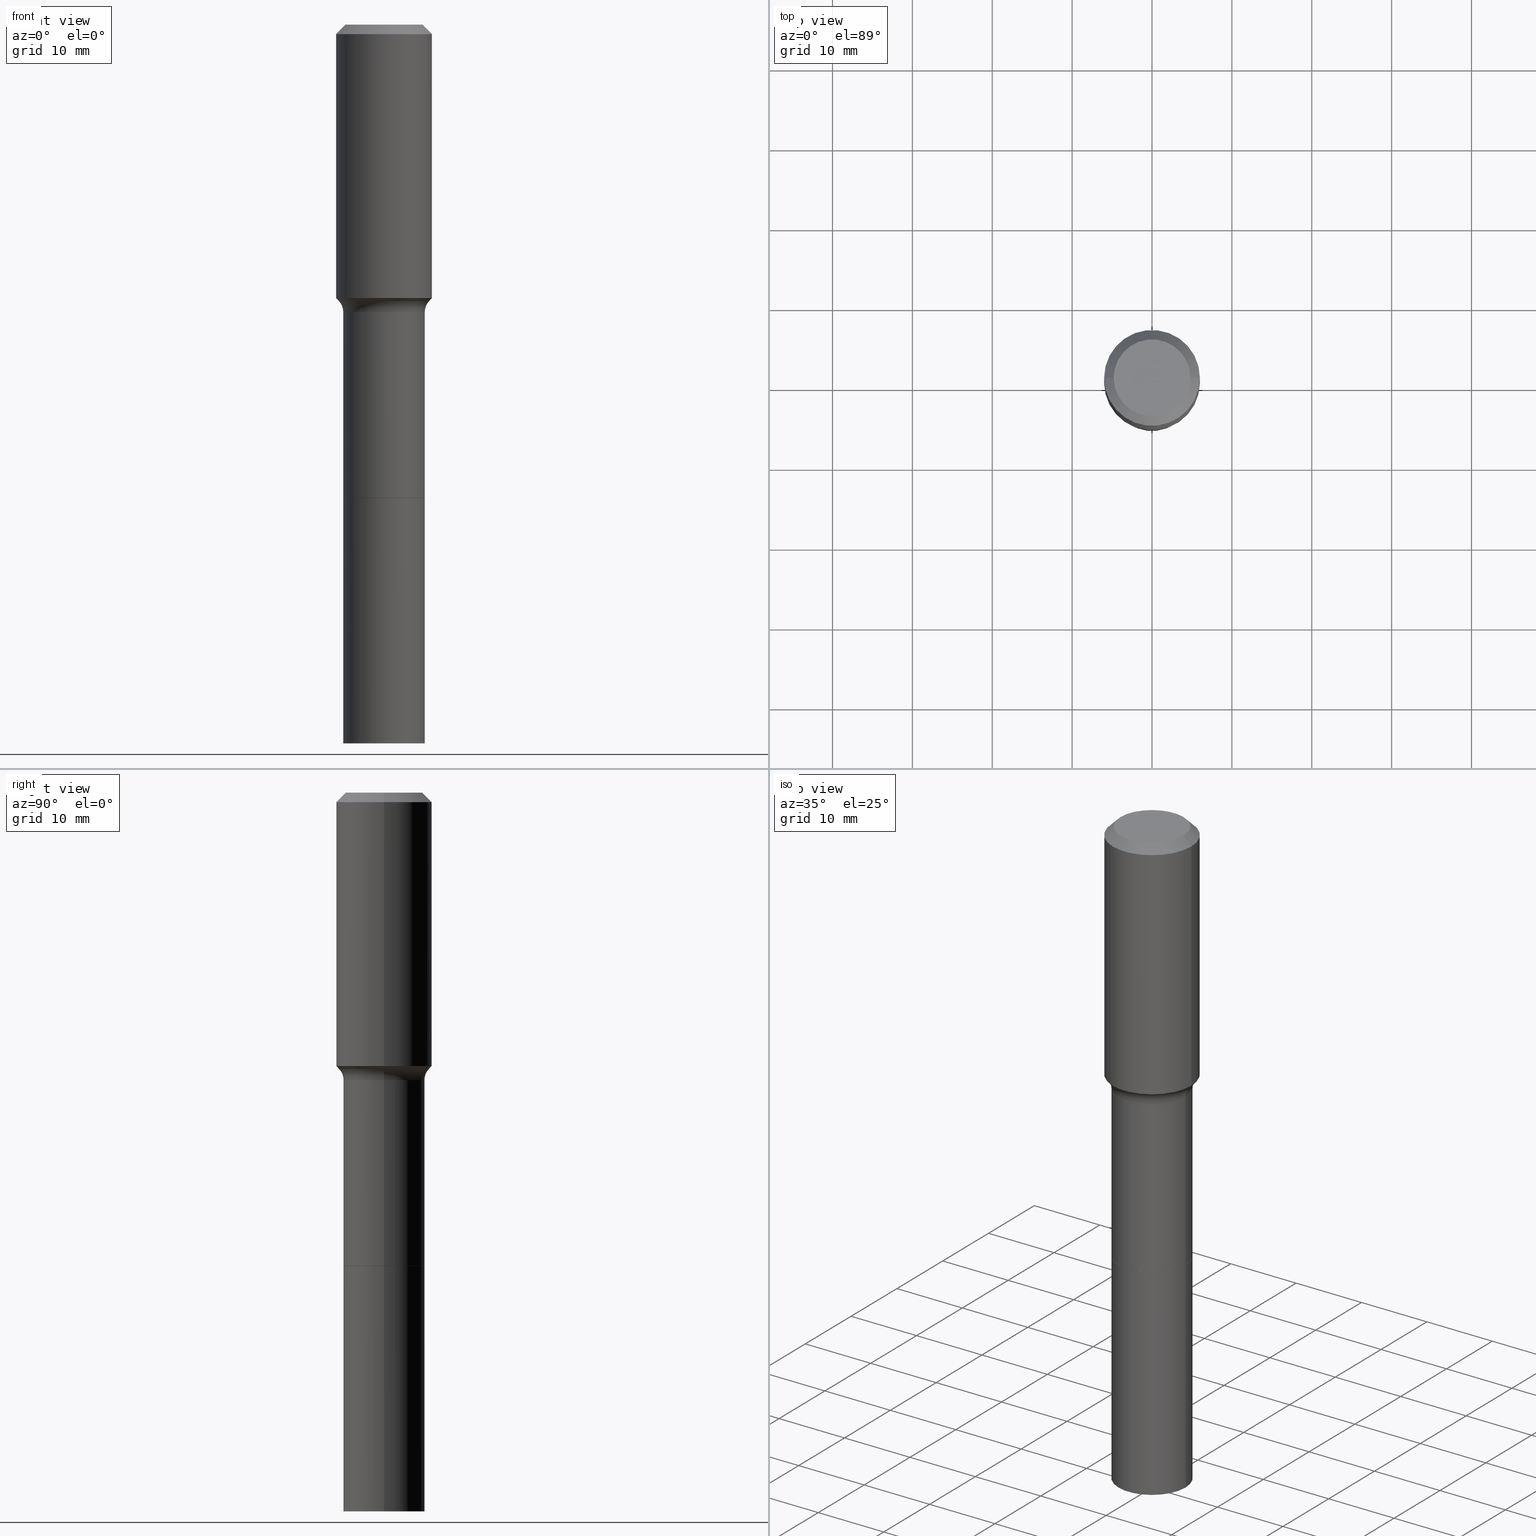
[diagram: canonical four-view strip — front | top / right | iso, engineering-drawing reading convention]
A machine part, canonical four-view strip (front | top / right | iso — engineering-drawing reading convention). The complete STEP part file that produces these views, byte-faithful:
ISO-10303-21;
HEADER;
FILE_DESCRIPTION (( 'STEP AP203' ),
    '1' );
FILE_NAME ('67779.STEP',
    '2025-04-01T15:30:29',
    ( '' ),
    ( '' ),
    'SwSTEP 2.0',
    'SolidWorks 2024',
    '' );
FILE_SCHEMA (( 'CONFIG_CONTROL_DESIGN' ));
ENDSEC;

DATA;
#1 = DIRECTION ( 'NONE',  ( 1.000000000000000000, -6.982962677686266711E-15, 0.000000000000000000 ) ) ;
#2 = DIRECTION ( 'NONE',  ( 2.445468806185136597E-29, -3.491481338843145583E-15, -1.000000000000000000 ) ) ;
#3 = ORIENTED_EDGE ( 'NONE', *, *, #294, .T. ) ;
#4 = ADVANCED_FACE ( 'NONE', ( #454 ), #495, .T. ) ;
#5 = CARTESIAN_POINT ( 'NONE',  ( 3.296064750852582441E-29, -4.705906916544506571E-15, -1.347825309615930500 ) ) ;
#6 = EDGE_LOOP ( 'NONE', ( #234, #292, #446, #118 ) ) ;
#7 = TOROIDAL_SURFACE ( 'NONE', #485, 0.2807999999999999385, 0.07999999999999993228 ) ;
#8 = DIRECTION ( 'NONE',  ( 0.7071067811865453523, -7.319954787623248157E-15, -0.7071067811865496822 ) ) ;
#9 = ORIENTED_EDGE ( 'NONE', *, *, #274, .F. ) ;
#10 = DIRECTION ( 'NONE',  ( 1.000000000000000000, -6.982962677686268288E-15, 0.000000000000000000 ) ) ;
#11 = EDGE_CURVE ( 'NONE', #417, #38, #39, .T. ) ;
#12 = DATE_AND_TIME ( #445, #293 ) ;
#13 = ORIENTED_EDGE ( 'NONE', *, *, #274, .T. ) ;
#14 = FACE_OUTER_BOUND ( 'NONE', #172, .T. ) ;
#15 = CARTESIAN_POINT ( 'NONE',  ( -9.427742298522546243E-47, 1.346031739168365344E-32, 3.855188123715862256E-18 ) ) ;
#16 = CALENDAR_DATE ( 2025, 1, 4 ) ;
#17 = CIRCLE ( 'NONE', #255, 0.2007999999999999785 ) ;
#18 = ORIENTED_EDGE ( 'NONE', *, *, #136, .T. ) ;
#19 = CARTESIAN_POINT ( 'NONE',  ( -0.2008000000000001173, -6.716412113177584804E-15, -2.332299999999999596 ) ) ;
#20 = FACE_OUTER_BOUND ( 'NONE', #360, .T. ) ;
#21 = CC_DESIGN_SECURITY_CLASSIFICATION ( #154, ( #188 ) ) ;
#22 = VECTOR ( 'NONE', #229, 39.37007874015748143 ) ;
#23 = AXIS2_PLACEMENT_3D ( 'NONE', #186, #347, #349 ) ;
#24 = ORIENTED_EDGE ( 'NONE', *, *, #11, .T. ) ;
#25 = ADVANCED_FACE ( 'NONE', ( #421 ), #335, .T. ) ;
#26 = AXIS2_PLACEMENT_3D ( 'NONE', #486, #198, #410 ) ;
#27 = EDGE_LOOP ( 'NONE', ( #24, #115, #420, #125 ) ) ;
#28 = DIRECTION ( 'NONE',  ( -2.445468806185136597E-29, 3.491481338843145583E-15, 1.000000000000000000 ) ) ;
#29 = ORIENTED_EDGE ( 'NONE', *, *, #299, .F. ) ;
#30 = PLANE ( 'NONE',  #23 ) ;
#31 = LOCAL_TIME ( 11, 30, 28.00000000000000000, #157 ) ;
#32 = LENGTH_MEASURE_WITH_UNIT ( LENGTH_MEASURE( 0.02539999999999999897 ), #182 );
#33 = CARTESIAN_POINT ( 'NONE',  ( -0.2362000000000000766, 1.678301941865357183E-15, -1.161852468318209177E-29 ) ) ;
#34 = EDGE_CURVE ( 'NONE', #315, #183, #418, .T. ) ;
#35 = DIRECTION ( 'NONE',  ( -2.445468806185136597E-29, 3.491481338843145583E-15, 1.000000000000000000 ) ) ;
#36 = CARTESIAN_POINT ( 'NONE',  ( 0.2007999999999999230, -6.350655407221791807E-15, -1.417300000000000004 ) ) ;
#37 = EDGE_CURVE ( 'NONE', #38, #230, #54, .T. ) ;
#38 = VERTEX_POINT ( 'NONE', #140 ) ;
#39 = CIRCLE ( 'NONE', #448, 0.2003000000000000058 ) ;
#40 = DIRECTION ( 'NONE',  ( 0.7071067811865957564, -2.468850131082761932E-15, 0.7071067811864992780 ) ) ;
#41 = EDGE_CURVE ( 'NONE', #254, #219, #194, .T. ) ;
#42 = ORIENTED_EDGE ( 'NONE', *, *, #309, .F. ) ;
#43 = VECTOR ( 'NONE', #322, 39.37007874015748143 ) ;
#44 = DIRECTION ( 'NONE',  ( -2.445468806185136597E-29, 3.491481338843145583E-15, 1.000000000000000000 ) ) ;
#45 = ORIENTED_EDGE ( 'NONE', *, *, #106, .T. ) ;
#46 = LINE ( 'NONE', #171, #381 ) ;
#47 = VERTEX_POINT ( 'NONE', #297 ) ;
#48 = VECTOR ( 'NONE', #75, 39.37007874015748854 ) ;
#49 = EDGE_CURVE ( 'NONE', #230, #47, #17, .T. ) ;
#50 = CARTESIAN_POINT ( 'NONE',  ( -0.2007999999999999508, 1.426769813406280823E-15, -9.877221661231847184E-30 ) ) ;
#51 = ORIENTED_EDGE ( 'NONE', *, *, #173, .T. ) ;
#52 = DIRECTION ( 'NONE',  ( -2.445468806185136877E-29, 3.491481338843145188E-15, 1.000000000000000000 ) ) ;
#53 = ADVANCED_FACE ( 'NONE', ( #295 ), #377, .F. ) ;
#54 = LINE ( 'NONE', #461, #275 ) ;
#55 = CALENDAR_DATE ( 2025, 1, 4 ) ;
#56 = DIRECTION ( 'NONE',  ( 1.000000000000000000, -6.982962677686266711E-15, 4.876176775795935232E-29 ) ) ;
#57 = PERSON_AND_ORGANIZATION ( #516, #159 ) ;
#58 = DIRECTION ( 'NONE',  ( 1.000000000000000000, -6.982962677686265922E-15, 0.000000000000000000 ) ) ;
#59 = ADVANCED_FACE ( 'NONE', ( #400 ), #333, .T. ) ;
#60 = ORIENTED_EDGE ( 'NONE', *, *, #441, .T. ) ;
#61 = DIRECTION ( 'NONE',  ( -2.445468806185136597E-29, 3.491481338843145583E-15, 1.000000000000000000 ) ) ;
#62 = CONICAL_SURFACE ( 'NONE', #503, 0.2361999999999999933, 0.7853981633974452814 ) ;
#63 = ORIENTED_EDGE ( 'NONE', *, *, #71, .F. ) ;
#64 = DIRECTION ( 'NONE',  ( 1.000000000000000000, -6.982962677686266711E-15, 4.883557194083112901E-29 ) ) ;
#65 = CIRCLE ( 'NONE', #411, 0.2007999999999999230 ) ;
#66 = ORIENTED_EDGE ( 'NONE', *, *, #459, .T. ) ;
#67 = DIRECTION ( 'NONE',  ( -2.445468806185136597E-29, 3.491481338843145583E-15, 1.000000000000000000 ) ) ;
#68 = DIRECTION ( 'NONE',  ( 1.000000000000000000, -6.982962677686265922E-15, 0.000000000000000000 ) ) ;
#69 = DIRECTION ( 'NONE',  ( 1.000000000000000000, -6.982962677686265922E-15, 4.876176775795935793E-29 ) ) ;
#70 = AXIS2_PLACEMENT_3D ( 'NONE', #267, #193, #511 ) ;
#71 = EDGE_CURVE ( 'NONE', #369, #244, #97, .T. ) ;
#72 = PLANE ( 'NONE',  #379 ) ;
#73 = DIRECTION ( 'NONE',  ( -2.445468806185136597E-29, 3.491481338843145583E-15, 1.000000000000000000 ) ) ;
#74 = EDGE_LOOP ( 'NONE', ( #80, #51, #304, #63 ) ) ;
#75 = DIRECTION ( 'NONE',  ( 0.6819983600624998088, -2.208861293262489214E-15, 0.7313537016191691276 ) ) ;
#76 = ADVANCED_FACE ( 'NONE', ( #310 ), #462, .T. ) ;
#77 = ORIENTED_EDGE ( 'NONE', *, *, #164, .T. ) ;
#78 = CARTESIAN_POINT ( 'NONE',  ( 0.2362000000000001598, -6.355282701014003885E-15, -1.347825309615930500 ) ) ;
#79 = DATE_AND_TIME ( #438, #83 ) ;
#80 = ORIENTED_EDGE ( 'NONE', *, *, #178, .F. ) ;
#81 = CARTESIAN_POINT ( 'NONE',  ( 1.155239464041865331E-30, -1.649375784469511612E-16, -0.04724000000000027483 ) ) ;
#82 = CARTESIAN_POINT ( 'NONE',  ( 0.2007999999999999508, -1.402178905679401956E-15, 9.791362965798235507E-30 ) ) ;
#83 = LOCAL_TIME ( 11, 30, 28.00000000000000000, #277 ) ;
#84 = VERTEX_POINT ( 'NONE', #155 ) ;
#85 = CARTESIAN_POINT ( 'NONE',  ( -9.427742298522546243E-47, 1.346031739168365344E-32, 3.855188123715862256E-18 ) ) ;
#86 = APPLICATION_CONTEXT ( 'configuration controlled 3d designs of mechanical parts and assemblies' ) ;
#87 = ORIENTED_EDGE ( 'NONE', *, *, #356, .T. ) ;
#88 = SHAPE_DEFINITION_REPRESENTATION ( #469, #320 ) ;
#89 = AXIS2_PLACEMENT_3D ( 'NONE', #149, #189, #200 ) ;
#90 = DIRECTION ( 'NONE',  ( 1.000000000000000000, -6.982962677686266711E-15, 4.876176775795935232E-29 ) ) ;
#91 = CARTESIAN_POINT ( 'NONE',  ( 0.2807999999999999385, -6.909292421436693459E-15, -1.417300000000000004 ) ) ;
#92 = AXIS2_PLACEMENT_3D ( 'NONE', #231, #246, #205 ) ;
#93 = PERSON_AND_ORGANIZATION_ROLE ( 'creator' ) ;
#94 = DIRECTION ( 'NONE',  ( -2.445468806185136597E-29, 3.491481338843145583E-15, 1.000000000000000000 ) ) ;
#95 = ADVANCED_FACE ( 'NONE', ( #266 ), #457, .T. ) ;
#96 = DIRECTION ( 'NONE',  ( -2.445468806185136877E-29, 3.491481338843145188E-15, 1.000000000000000000 ) ) ;
#97 = CIRCLE ( 'NONE', #303, 0.2361999999999999933 ) ;
#98 = CARTESIAN_POINT ( 'NONE',  ( -0.2222917038704662618, -3.178504183711050894E-15, -1.362740131195000037 ) ) ;
#99 = CC_DESIGN_APPROVAL ( #414, ( #188 ) ) ;
#100 = DIRECTION ( 'NONE',  ( -2.445468806185136597E-29, 3.491481338843145583E-15, 1.000000000000000000 ) ) ;
#101 = ORIENTED_EDGE ( 'NONE', *, *, #423, .T. ) ;
#102 = PLANE ( 'NONE',  #70 ) ;
#103 = DESIGN_CONTEXT ( 'detailed design', #120, 'design' ) ;
#104 = DIRECTION ( 'NONE',  ( -2.445468806185136597E-29, 3.491481338843145583E-15, 1.000000000000000000 ) ) ;
#105 = CARTESIAN_POINT ( 'NONE',  ( 1.155239464041865331E-30, -1.649375784469511612E-16, -0.04724000000000027483 ) ) ;
#106 = EDGE_CURVE ( 'NONE', #366, #199, #374, .T. ) ;
#107 = DIRECTION ( 'NONE',  ( 1.000000000000000000, 0.000000000000000000, 0.000000000000000000 ) ) ;
#108 = DIRECTION ( 'NONE',  ( 2.445468806185136597E-29, -3.491481338843145583E-15, -1.000000000000000000 ) ) ;
#109 = DIRECTION ( 'NONE',  ( 2.438088387897960049E-29, -3.491481338843145188E-15, -1.000000000000000000 ) ) ;
#110 =( NAMED_UNIT ( * ) SI_UNIT ( $, .STERADIAN. ) SOLID_ANGLE_UNIT ( ) );
#111 = CARTESIAN_POINT ( 'NONE',  ( 3.296064750852582441E-29, -4.705906916544506571E-15, -1.347825309615930500 ) ) ;
#112 = CIRCLE ( 'NONE', #214, 0.1889600000000000168 ) ;
#113 = EDGE_LOOP ( 'NONE', ( #491, #217 ) ) ;
#114 = CARTESIAN_POINT ( 'NONE',  ( 3.465962939006193759E-29, -4.948476501542390442E-15, -1.417300000000000004 ) ) ;
#115 = ORIENTED_EDGE ( 'NONE', *, *, #37, .T. ) ;
#116 = CARTESIAN_POINT ( 'NONE',  ( -0.2007999999999999230, -5.118186530322137150E-15, -1.417300000000000004 ) ) ;
#117 = PERSON_AND_ORGANIZATION ( #516, #159 ) ;
#118 = ORIENTED_EDGE ( 'NONE', *, *, #71, .T. ) ;
#119 = CARTESIAN_POINT ( 'NONE',  ( 5.703566896665592781E-29, -8.143181926583866613E-15, -2.332299999999999596 ) ) ;
#120 = APPLICATION_CONTEXT ( 'configuration controlled 3d designs of mechanical parts and assemblies' ) ;
#121 = ORIENTED_EDGE ( 'NONE', *, *, #37, .F. ) ;
#122 = CIRCLE ( 'NONE', #26, 0.2008000000000000063 ) ;
#123 = DIRECTION ( 'NONE',  ( 1.000000000000000000, -6.982962677686268288E-15, 0.000000000000000000 ) ) ;
#124 = PRODUCT_DEFINITION ( 'UNKNOWN', '', #188, #103 ) ;
#125 = ORIENTED_EDGE ( 'NONE', *, *, #459, .F. ) ;
#126 = AXIS2_PLACEMENT_3D ( 'NONE', #424, #353, #150 ) ;
#127 = LINE ( 'NONE', #50, #206 ) ;
#128 = PERSON_AND_ORGANIZATION_ROLE ( 'creator' ) ;
#129 = CARTESIAN_POINT ( 'NONE',  ( 0.000000000000000000, 0.000000000000000000, 0.000000000000000000 ) ) ;
#130 = AXIS2_PLACEMENT_3D ( 'NONE', #129, #259, #286 ) ;
#131 = ADVANCED_FACE ( 'NONE', ( #20 ), #7, .F. ) ;
#132 = PERSON_AND_ORGANIZATION_ROLE ( 'design_supplier' ) ;
#133 = CARTESIAN_POINT ( 'NONE',  ( 0.2008000000000002283, -1.377354473360231923E-14, -3.543299999999999894 ) ) ;
#134 = PERSON_AND_ORGANIZATION ( #516, #159 ) ;
#135 = ORIENTED_EDGE ( 'NONE', *, *, #152, .F. ) ;
#136 = EDGE_CURVE ( 'NONE', #183, #362, #419, .T. ) ;
#137 = APPROVAL_DATE_TIME ( #79, #414 ) ;
#138 = APPROVAL ( #372, 'UNSPECIFIED' ) ;
#139 = DIRECTION ( 'NONE',  ( 1.000000000000000000, -6.982962677686266711E-15, 4.876185090822587894E-29 ) ) ;
#140 = CARTESIAN_POINT ( 'NONE',  ( -0.2003000000000000058, -6.717315599682275290E-15, -2.332299999999999596 ) ) ;
#141 = APPROVAL_DATE_TIME ( #300, #138 ) ;
#142 = ORIENTED_EDGE ( 'NONE', *, *, #106, .F. ) ;
#143 = DIRECTION ( 'NONE',  ( 1.000000000000000000, -6.982962677686266711E-15, 4.883557194083112901E-29 ) ) ;
#144 = CIRCLE ( 'NONE', #437, 0.2361999999999999933 ) ;
#145 = CARTESIAN_POINT ( 'NONE',  ( 0.000000000000000000, 0.000000000000000000, 0.000000000000000000 ) ) ;
#146 = DIRECTION ( 'NONE',  ( 1.000000000000000000, -6.982962677686263555E-15, 0.000000000000000000 ) ) ;
#147 = DIRECTION ( 'NONE',  ( -2.438088387897960049E-29, 3.491481338843145188E-15, 1.000000000000000000 ) ) ;
#148 = ADVANCED_FACE ( 'NONE', ( #507 ), #102, .F. ) ;
#149 = CARTESIAN_POINT ( 'NONE',  ( 5.703566896665592781E-29, -8.143181926583866613E-15, -2.332299999999999596 ) ) ;
#150 = DIRECTION ( 'NONE',  ( 1.000000000000000000, -6.982962677686265922E-15, 0.000000000000000000 ) ) ;
#151 = FACE_OUTER_BOUND ( 'NONE', #489, .T. ) ;
#152 = EDGE_CURVE ( 'NONE', #315, #325, #224, .T. ) ;
#153 = EDGE_LOOP ( 'NONE', ( #142, #221, #371, #357 ) ) ;
#154 = SECURITY_CLASSIFICATION ( '', '', #289 ) ;
#155 = CARTESIAN_POINT ( 'NONE',  ( -0.2008000000000002283, -8.830504063847108456E-15, -3.543299999999999894 ) ) ;
#156 = CARTESIAN_POINT ( 'NONE',  ( -0.2361999999999999933, -7.571203056303714610E-16, -0.04724000000000027483 ) ) ;
#157 = COORDINATED_UNIVERSAL_TIME_OFFSET ( 5, 0, .BEHIND. ) ;
#158 = DIMENSIONAL_EXPONENTS ( 1.000000000000000000, 0.000000000000000000, 0.000000000000000000, 0.000000000000000000, 0.000000000000000000, 0.000000000000000000, 0.000000000000000000 ) ;
#159 = ORGANIZATION ( 'UNSPECIFIED', 'UNSPECIFIED', '' ) ;
#160 = ORIENTED_EDGE ( 'NONE', *, *, #479, .F. ) ;
#161 = DIRECTION ( 'NONE',  ( 1.000000000000000000, -6.982962677686265133E-15, 0.000000000000000000 ) ) ;
#162 = ORIENTED_EDGE ( 'NONE', *, *, #502, .F. ) ;
#163 = CARTESIAN_POINT ( 'NONE',  ( 0.2003000000000000058, -9.541869350924425760E-15, -2.332299999999999596 ) ) ;
#164 = EDGE_CURVE ( 'NONE', #329, #385, #476, .T. ) ;
#165 = APPROVAL_ROLE ( '' ) ;
#166 = EDGE_LOOP ( 'NONE', ( #412, #3 ) ) ;
#167 = DIRECTION ( 'NONE',  ( -2.445468806185136597E-29, 3.491481338843145583E-15, 1.000000000000000000 ) ) ;
#168 = APPROVAL_DATE_TIME ( #12, #191 ) ;
#169 = ORIENTED_EDGE ( 'NONE', *, *, #49, .F. ) ;
#170 = PERSON_AND_ORGANIZATION ( #516, #159 ) ;
#171 = CARTESIAN_POINT ( 'NONE',  ( 0.2361999999999999933, -1.785387205520586782E-15, -0.04724000000000027483 ) ) ;
#172 = EDGE_LOOP ( 'NONE', ( #160, #101, #77, #42 ) ) ;
#173 = EDGE_CURVE ( 'NONE', #199, #325, #474, .T. ) ;
#174 = EDGE_LOOP ( 'NONE', ( #87, #450 ) ) ;
#175 = COORDINATED_UNIVERSAL_TIME_OFFSET ( 5, 0, .BEHIND. ) ;
#176 = CARTESIAN_POINT ( 'NONE',  ( -0.2008000000000000063, -8.830504063847110034E-15, -2.332299999999999596 ) ) ;
#177 = CARTESIAN_POINT ( 'NONE',  ( 3.465962939006193759E-29, -4.948476501542390442E-15, -1.417300000000000004 ) ) ;
#178 = EDGE_CURVE ( 'NONE', #199, #369, #314, .T. ) ;
#179 = EDGE_CURVE ( 'NONE', #254, #369, #391, .T. ) ;
#180 = CIRCLE ( 'NONE', #92, 0.2008000000000000063 ) ;
#181 = DIRECTION ( 'NONE',  ( 1.000000000000000000, -6.982962677686262766E-15, 0.000000000000000000 ) ) ;
#182 =( LENGTH_UNIT ( ) NAMED_UNIT ( * ) SI_UNIT ( $, .METRE. ) );
#183 = VERTEX_POINT ( 'NONE', #36 ) ;
#184 = FACE_OUTER_BOUND ( 'NONE', #6, .T. ) ;
#185 = ADVANCED_FACE ( 'NONE', ( #434 ), #72, .F. ) ;
#186 = CARTESIAN_POINT ( 'NONE',  ( 8.665029620955794069E-29, -1.237136582792291707E-14, -3.543299999999999894 ) ) ;
#187 = FACE_OUTER_BOUND ( 'NONE', #518, .T. ) ;
#188 = PRODUCT_DEFINITION_FORMATION_WITH_SPECIFIED_SOURCE ( 'ANY', '', #235, .NOT_KNOWN. ) ;
#189 = DIRECTION ( 'NONE',  ( -2.445468806185136597E-29, 3.491481338843145583E-15, 1.000000000000000000 ) ) ;
#190 = DIRECTION ( 'NONE',  ( 1.000000000000000000, -6.982962677686266711E-15, 0.000000000000000000 ) ) ;
#191 = APPROVAL ( #241, 'UNSPECIFIED' ) ;
#192 = MANIFOLD_SOLID_BREP ( 'Body-Move/Copy2[1]', #456 ) ;
#193 = DIRECTION ( 'NONE',  ( 2.438088387897960049E-29, -3.491481338843145188E-15, -1.000000000000000000 ) ) ;
#194 = CIRCLE ( 'NONE', #498, 0.1889600000000000168 ) ;
#195 = ORIENTED_EDGE ( 'NONE', *, *, #496, .T. ) ;
#196 = CARTESIAN_POINT ( 'NONE',  ( 0.000000000000000000, 0.000000000000000000, 0.000000000000000000 ) ) ;
#197 = ORIENTED_EDGE ( 'NONE', *, *, #294, .F. ) ;
#198 = DIRECTION ( 'NONE',  ( -2.445468806185136597E-29, 3.491481338843145583E-15, 1.000000000000000000 ) ) ;
#199 = VERTEX_POINT ( 'NONE', #468 ) ;
#200 = DIRECTION ( 'NONE',  ( 1.000000000000000000, -6.982962677686265133E-15, 0.000000000000000000 ) ) ;
#201 = ADVANCED_FACE ( 'NONE', ( #312 ), #345, .T. ) ;
#202 = CARTESIAN_POINT ( 'NONE',  ( 0.2362000000000000766, -1.649375784469496722E-15, 1.151752954443000368E-29 ) ) ;
#203 = ORIENTED_EDGE ( 'NONE', *, *, #502, .T. ) ;
#204 = AXIS2_PLACEMENT_3D ( 'NONE', #428, #416, #58 ) ;
#205 = DIRECTION ( 'NONE',  ( 1.000000000000000000, -6.982962677686262766E-15, 0.000000000000000000 ) ) ;
#206 = VECTOR ( 'NONE', #52, 39.37007874015748143 ) ;
#207 = ORIENTED_EDGE ( 'NONE', *, *, #324, .T. ) ;
#208 = DIRECTION ( 'NONE',  ( -2.445468806185136597E-29, 3.491481338843145583E-15, 1.000000000000000000 ) ) ;
#209 = CC_DESIGN_DATE_AND_TIME_ASSIGNMENT ( #271, #452, ( #154 ) ) ;
#210 = LOCAL_TIME ( 11, 30, 28.00000000000000000, #285 ) ;
#211 = PERSON_AND_ORGANIZATION_ROLE ( 'design_owner' ) ;
#212 = CARTESIAN_POINT ( 'NONE',  ( 5.703566896665592781E-29, -8.143181926583866613E-15, -2.332299999999999596 ) ) ;
#213 = EDGE_LOOP ( 'NONE', ( #435, #405, #477, #501 ) ) ;
#214 = AXIS2_PLACEMENT_3D ( 'NONE', #85, #482, #321 ) ;
#215 = AXIS2_PLACEMENT_3D ( 'NONE', #337, #226, #307 ) ;
#216 = CC_DESIGN_PERSON_AND_ORGANIZATION_ASSIGNMENT ( #117, #211, ( #235 ) ) ;
#217 = ORIENTED_EDGE ( 'NONE', *, *, #451, .F. ) ;
#218 = CARTESIAN_POINT ( 'NONE',  ( 3.465962939006193759E-29, -4.948476501542390442E-15, -1.417300000000000004 ) ) ;
#219 = VERTEX_POINT ( 'NONE', #227 ) ;
#220 = APPROVAL_PERSON_ORGANIZATION ( #134, #191, #165 ) ;
#221 = ORIENTED_EDGE ( 'NONE', *, *, #509, .T. ) ;
#222 = CARTESIAN_POINT ( 'NONE',  ( -0.1889600000000000168, 1.401969416799070942E-15, 3.855188123706346622E-18 ) ) ;
#223 = AXIS2_PLACEMENT_3D ( 'NONE', #91, #248, #181 ) ;
#224 = LINE ( 'NONE', #513, #48 ) ;
#225 = CC_DESIGN_PERSON_AND_ORGANIZATION_ASSIGNMENT ( #413, #132, ( #188 ) ) ;
#226 = DIRECTION ( 'NONE',  ( 7.105427357601001859E-15, 1.000000000000000000, -3.491481338843145583E-15 ) ) ;
#227 = CARTESIAN_POINT ( 'NONE',  ( 0.1889600000000000168, -1.540873453589747738E-15, 3.855188123725863225E-18 ) ) ;
#228 = CIRCLE ( 'NONE', #215, 0.07999999999999996003 ) ;
#229 = DIRECTION ( 'NONE',  ( -2.445468806185136877E-29, 3.491481338843145188E-15, 1.000000000000000000 ) ) ;
#230 = VERTEX_POINT ( 'NONE', #386 ) ;
#231 = CARTESIAN_POINT ( 'NONE',  ( 5.703566896665592781E-29, -8.143181926583866613E-15, -2.332299999999999596 ) ) ;
#232 = PERSON_AND_ORGANIZATION ( #516, #159 ) ;
#233 = VECTOR ( 'NONE', #264, 39.37007874015748143 ) ;
#234 = ORIENTED_EDGE ( 'NONE', *, *, #441, .F. ) ;
#235 = PRODUCT ( '67779', '67779', '', ( #430 ) ) ;
#236 = CARTESIAN_POINT ( 'NONE',  ( 5.703566896665592781E-29, -8.143181926583866613E-15, -2.332299999999999596 ) ) ;
#237 = ADVANCED_FACE ( 'NONE', ( #151 ), #287, .F. ) ;
#238 = ORIENTED_EDGE ( 'NONE', *, *, #509, .F. ) ;
#239 = DIRECTION ( 'NONE',  ( -2.445468806185136597E-29, 3.491481338843145583E-15, 1.000000000000000000 ) ) ;
#240 = DIRECTION ( 'NONE',  ( -2.445468806185136877E-29, 3.491481338843145188E-15, 1.000000000000000000 ) ) ;
#241 = APPROVAL_STATUS ( 'not_yet_approved' ) ;
#242 = ORIENTED_EDGE ( 'NONE', *, *, #451, .T. ) ;
#243 = DIRECTION ( 'NONE',  ( 1.000000000000000000, -6.982962677686264344E-15, 0.000000000000000000 ) ) ;
#244 = VERTEX_POINT ( 'NONE', #514 ) ;
#245 = ADVANCED_FACE ( 'NONE', ( #184 ), #62, .T. ) ;
#246 = DIRECTION ( 'NONE',  ( -2.445468806185136597E-29, 3.491481338843145583E-15, 1.000000000000000000 ) ) ;
#247 = DATE_AND_TIME ( #449, #210 ) ;
#248 = DIRECTION ( 'NONE',  ( -6.982962677686266711E-15, -1.000000000000000000, 3.491481338843145583E-15 ) ) ;
#249 = DIRECTION ( 'NONE',  ( -0.7071067811865957564, 7.493145998870527710E-15, 0.7071067811864992780 ) ) ;
#250 = PERSON_AND_ORGANIZATION_ROLE ( 'classification_officer' ) ;
#251 = AXIS2_PLACEMENT_3D ( 'NONE', #114, #28, #143 ) ;
#252 = ADVANCED_FACE ( 'NONE', ( #466 ), #339, .T. ) ;
#253 = VECTOR ( 'NONE', #240, 39.37007874015748143 ) ;
#254 = VERTEX_POINT ( 'NONE', #222 ) ;
#255 = AXIS2_PLACEMENT_3D ( 'NONE', #460, #100, #458 ) ;
#256 = CARTESIAN_POINT ( 'NONE',  ( 3.332538481774012867E-29, -4.757981737760002382E-15, -1.362740131195000037 ) ) ;
#257 = AXIS2_PLACEMENT_3D ( 'NONE', #218, #338, #296 ) ;
#258 = ADVANCED_FACE ( 'NONE', ( #187 ), #30, .T. ) ;
#259 = DIRECTION ( 'NONE',  ( -2.445468806185136597E-29, 3.491481338843145583E-15, 1.000000000000000000 ) ) ;
#260 = EDGE_LOOP ( 'NONE', ( #399, #319, #344, #393 ) ) ;
#261 = DIRECTION ( 'NONE',  ( -2.445468806185136877E-29, 3.491481338843145188E-15, 1.000000000000000000 ) ) ;
#262 = CARTESIAN_POINT ( 'NONE',  ( 5.702344162262501100E-29, -8.141436185914445899E-15, -2.331799999999999873 ) ) ;
#263 = DIRECTION ( 'NONE',  ( 1.000000000000000000, -6.982962677686265133E-15, 0.000000000000000000 ) ) ;
#264 = DIRECTION ( 'NONE',  ( -0.7071067811865453523, 2.468850131082234184E-15, -0.7071067811865496822 ) ) ;
#265 = EDGE_CURVE ( 'NONE', #47, #230, #463, .T. ) ;
#266 = FACE_OUTER_BOUND ( 'NONE', #442, .T. ) ;
#267 = CARTESIAN_POINT ( 'NONE',  ( 5.703566896665592781E-29, -8.143181926583866613E-15, -2.332299999999999596 ) ) ;
#268 = AXIS2_PLACEMENT_3D ( 'NONE', #196, #281, #90 ) ;
#269 = ORIENTED_EDGE ( 'NONE', *, *, #179, .F. ) ;
#270 = DIRECTION ( 'NONE',  ( 1.000000000000000000, -6.982962677686268288E-15, 0.000000000000000000 ) ) ;
#271 = DATE_AND_TIME ( #55, #455 ) ;
#272 = ORIENTED_EDGE ( 'NONE', *, *, #34, .T. ) ;
#273 = CARTESIAN_POINT ( 'NONE',  ( 3.465962939006193759E-29, -4.948476501542390442E-15, -1.417300000000000004 ) ) ;
#274 = EDGE_CURVE ( 'NONE', #244, #369, #144, .T. ) ;
#275 = VECTOR ( 'NONE', #249, 39.37007874015748143 ) ;
#276 = VECTOR ( 'NONE', #376, 39.37007874015748854 ) ;
#277 = COORDINATED_UNIVERSAL_TIME_OFFSET ( 5, 0, .BEHIND. ) ;
#278 = ORIENTED_EDGE ( 'NONE', *, *, #406, .F. ) ;
#279 = CARTESIAN_POINT ( 'NONE',  ( 8.665029620955794069E-29, -1.237136582792291707E-14, -3.543299999999999894 ) ) ;
#280 = EDGE_LOOP ( 'NONE', ( #197, #60, #13, #269 ) ) ;
#281 = DIRECTION ( 'NONE',  ( -2.445468806185136597E-29, 3.491481338843145583E-15, 1.000000000000000000 ) ) ;
#282 = ORIENTED_EDGE ( 'NONE', *, *, #178, .T. ) ;
#283 = ADVANCED_FACE ( 'NONE', ( #470 ), #351, .T. ) ;
#284 = DIRECTION ( 'NONE',  ( 1.000000000000000000, -6.982962677686268288E-15, 0.000000000000000000 ) ) ;
#285 = COORDINATED_UNIVERSAL_TIME_OFFSET ( 5, 0, .BEHIND. ) ;
#286 = DIRECTION ( 'NONE',  ( 1.000000000000000000, -6.982962677686266711E-15, 4.876176775795935793E-29 ) ) ;
#287 = TOROIDAL_SURFACE ( 'NONE', #251, 0.2807999999999999385, 0.07999999999999993228 ) ;
#288 = AXIS2_PLACEMENT_3D ( 'NONE', #262, #425, #146 ) ;
#289 = SECURITY_CLASSIFICATION_LEVEL ( 'unclassified' ) ;
#290 = LINE ( 'NONE', #163, #443 ) ;
#291 = PERSON_AND_ORGANIZATION ( #516, #159 ) ;
#292 = ORIENTED_EDGE ( 'NONE', *, *, #41, .F. ) ;
#293 = LOCAL_TIME ( 11, 30, 28.00000000000000000, #318 ) ;
#294 = EDGE_CURVE ( 'NONE', #219, #254, #112, .T. ) ;
#295 = FACE_OUTER_BOUND ( 'NONE', #166, .T. ) ;
#296 = DIRECTION ( 'NONE',  ( 1.000000000000000000, -6.982962677686265133E-15, 0.000000000000000000 ) ) ;
#297 = CARTESIAN_POINT ( 'NONE',  ( 0.2007999999999999785, -9.543615091593848052E-15, -2.331799999999999873 ) ) ;
#298 = AXIS2_PLACEMENT_3D ( 'NONE', #256, #311, #68 ) ;
#299 = EDGE_CURVE ( 'NONE', #329, #84, #388, .T. ) ;
#300 = DATE_AND_TIME ( #16, #31 ) ;
#301 = DIRECTION ( 'NONE',  ( 1.000000000000000000, -6.982962677686265133E-15, 0.000000000000000000 ) ) ;
#302 = AXIS2_PLACEMENT_3D ( 'NONE', #340, #109, #358 ) ;
#303 = AXIS2_PLACEMENT_3D ( 'NONE', #81, #364, #1 ) ;
#304 = ORIENTED_EDGE ( 'NONE', *, *, #373, .T. ) ;
#305 = DIRECTION ( 'NONE',  ( -1.000000000000000000, 6.982962677686266711E-15, 0.000000000000000000 ) ) ;
#306 = AXIS2_PLACEMENT_3D ( 'NONE', #330, #447, #497 ) ;
#307 = DIRECTION ( 'NONE',  ( -1.000000000000000000, 7.105427357601001859E-15, 0.000000000000000000 ) ) ;
#308 = CARTESIAN_POINT ( 'NONE',  ( 1.155239464041865331E-30, -1.649375784469511612E-16, -0.04724000000000027483 ) ) ;
#309 = EDGE_CURVE ( 'NONE', #481, #385, #122, .T. ) ;
#310 = FACE_OUTER_BOUND ( 'NONE', #380, .T. ) ;
#311 = DIRECTION ( 'NONE',  ( -2.445468806185136597E-29, 3.491481338843145583E-15, 1.000000000000000000 ) ) ;
#312 = FACE_OUTER_BOUND ( 'NONE', #74, .T. ) ;
#313 = AXIS2_PLACEMENT_3D ( 'NONE', #5, #493, #284 ) ;
#314 = LINE ( 'NONE', #33, #22 ) ;
#315 = VERTEX_POINT ( 'NONE', #490 ) ;
#316 = AXIS2_PLACEMENT_3D ( 'NONE', #515, #480, #107 ) ;
#317 = CYLINDRICAL_SURFACE ( 'NONE', #334, 0.2008000000000001173 ) ;
#318 = COORDINATED_UNIVERSAL_TIME_OFFSET ( 5, 0, .BEHIND. ) ;
#319 = ORIENTED_EDGE ( 'NONE', *, *, #479, .T. ) ;
#320 = ADVANCED_BREP_SHAPE_REPRESENTATION ( '67779', ( #192, #363, #316 ), #508 ) ;
#321 = DIRECTION ( 'NONE',  ( 1.000000000000000000, -6.982962677686266711E-15, 4.876185090822587894E-29 ) ) ;
#322 = DIRECTION ( 'NONE',  ( -2.445468806185136877E-29, 3.491481338843145188E-15, 1.000000000000000000 ) ) ;
#323 = CIRCLE ( 'NONE', #401, 0.2008000000000002283 ) ;
#324 = EDGE_CURVE ( 'NONE', #362, #183, #65, .T. ) ;
#325 = VERTEX_POINT ( 'NONE', #78 ) ;
#326 = APPROVAL_PERSON_ORGANIZATION ( #291, #414, #483 ) ;
#327 = DIRECTION ( 'NONE',  ( 1.000000000000000000, -6.982962677686264344E-15, 0.000000000000000000 ) ) ;
#328 = CIRCLE ( 'NONE', #126, 0.2222917038704662618 ) ;
#329 = VERTEX_POINT ( 'NONE', #133 ) ;
#330 = CARTESIAN_POINT ( 'NONE',  ( 5.703566896665592781E-29, -8.143181926583866613E-15, -2.332299999999999596 ) ) ;
#331 = DATE_TIME_ROLE ( 'creation_date' ) ;
#332 = EDGE_LOOP ( 'NONE', ( #439, #403, #415, #278 ) ) ;
#333 = CONICAL_SURFACE ( 'NONE', #89, 0.2003000000000000058, 0.7853981633975165577 ) ;
#334 = AXIS2_PLACEMENT_3D ( 'NONE', #236, #365, #10 ) ;
#335 = CYLINDRICAL_SURFACE ( 'NONE', #130, 0.2362000000000000766 ) ;
#336 = ADVANCED_FACE ( 'NONE', ( #440 ), #407, .T. ) ;
#337 = CARTESIAN_POINT ( 'NONE',  ( -0.2807999999999999385, -2.953272499528029557E-15, -1.417300000000000004 ) ) ;
#338 = DIRECTION ( 'NONE',  ( -2.445468806185136597E-29, 3.491481338843145583E-15, 1.000000000000000000 ) ) ;
#339 = CONICAL_SURFACE ( 'NONE', #397, 0.2222917038704662618, 0.7504915783575636379 ) ;
#340 = CARTESIAN_POINT ( 'NONE',  ( -4.713871149261273121E-47, 6.730158695841826722E-33, 1.927594061857931128E-18 ) ) ;
#341 = EDGE_CURVE ( 'NONE', #230, #362, #127, .T. ) ;
#342 = AXIS2_PLACEMENT_3D ( 'NONE', #361, #2, #394 ) ;
#343 = ORIENTED_EDGE ( 'NONE', *, *, #34, .F. ) ;
#344 = ORIENTED_EDGE ( 'NONE', *, *, #356, .F. ) ;
#345 = CYLINDRICAL_SURFACE ( 'NONE', #426, 0.2362000000000000766 ) ;
#346 = CC_DESIGN_APPROVAL ( #138, ( #154 ) ) ;
#347 = DIRECTION ( 'NONE',  ( 2.438088387897960049E-29, -3.491481338843145188E-15, -1.000000000000000000 ) ) ;
#348 = ADVANCED_FACE ( 'NONE', ( #359 ), #505, .T. ) ;
#349 = DIRECTION ( 'NONE',  ( -1.000000000000000000, 6.982962677686265922E-15, -4.876176775795935793E-29 ) ) ;
#350 =( NAMED_UNIT ( * ) PLANE_ANGLE_UNIT ( ) SI_UNIT ( $, .RADIAN. ) );
#351 = CYLINDRICAL_SURFACE ( 'NONE', #512, 0.2008000000000001173 ) ;
#352 = APPROVAL_PERSON_ORGANIZATION ( #232, #138, #396 ) ;
#353 = DIRECTION ( 'NONE',  ( -2.445468806185136597E-29, 3.491481338843145583E-15, 1.000000000000000000 ) ) ;
#354 = CLOSED_SHELL ( 'NONE', ( #59, #348, #25, #95, #237, #4, #336, #131, #252, #201, #245, #53, #185, #76 ) ) ;
#355 = CARTESIAN_POINT ( 'NONE',  ( 5.703566896665592781E-29, -8.143181926583866613E-15, -2.332299999999999596 ) ) ;
#356 = EDGE_CURVE ( 'NONE', #385, #481, #180, .T. ) ;
#357 = ORIENTED_EDGE ( 'NONE', *, *, #173, .F. ) ;
#358 = DIRECTION ( 'NONE',  ( -1.000000000000000000, 6.982962677686265922E-15, -4.876176775795935793E-29 ) ) ;
#359 = FACE_OUTER_BOUND ( 'NONE', #280, .T. ) ;
#360 = EDGE_LOOP ( 'NONE', ( #409, #162, #272, #18 ) ) ;
#361 = CARTESIAN_POINT ( 'NONE',  ( 1.155239464041865331E-30, -1.649375784469511612E-16, -0.04724000000000027483 ) ) ;
#362 = VERTEX_POINT ( 'NONE', #116 ) ;
#363 = MANIFOLD_SOLID_BREP ( 'Body-Move/Copy2[2]', #354 ) ;
#364 = DIRECTION ( 'NONE',  ( -2.445468806185136597E-29, 3.491481338843145583E-15, 1.000000000000000000 ) ) ;
#365 = DIRECTION ( 'NONE',  ( -2.445468806185136597E-29, 3.491481338843145583E-15, 1.000000000000000000 ) ) ;
#366 = VERTEX_POINT ( 'NONE', #370 ) ;
#367 = LINE ( 'NONE', #202, #43 ) ;
#368 = CC_DESIGN_DATE_AND_TIME_ASSIGNMENT ( #247, #331, ( #124 ) ) ;
#369 = VERTEX_POINT ( 'NONE', #156 ) ;
#370 = CARTESIAN_POINT ( 'NONE',  ( -0.2222917038704663173, -3.178504183711050894E-15, -1.362740131195000037 ) ) ;
#371 = ORIENTED_EDGE ( 'NONE', *, *, #152, .T. ) ;
#372 = APPROVAL_STATUS ( 'not_yet_approved' ) ;
#373 = EDGE_CURVE ( 'NONE', #325, #244, #367, .T. ) ;
#374 = LINE ( 'NONE', #98, #276 ) ;
#375 = LINE ( 'NONE', #19, #432 ) ;
#376 = DIRECTION ( 'NONE',  ( -0.6819983600624998088, 7.399397606724291309E-15, 0.7313537016191691276 ) ) ;
#377 = PLANE ( 'NONE',  #302 ) ;
#378 = PRODUCT_RELATED_PRODUCT_CATEGORY ( 'detail', '', ( #235 ) ) ;
#379 = AXIS2_PLACEMENT_3D ( 'NONE', #355, #147, #69 ) ;
#380 = EDGE_LOOP ( 'NONE', ( #121, #242, #66, #169 ) ) ;
#381 = VECTOR ( 'NONE', #8, 39.37007874015748143 ) ;
#382 = ORIENTED_EDGE ( 'NONE', *, *, #373, .F. ) ;
#383 = DIRECTION ( 'NONE',  ( 1.000000000000000000, -6.982962677686266711E-15, 4.876176775795935793E-29 ) ) ;
#384 =( CONVERSION_BASED_UNIT ( 'INCH', #32 ) LENGTH_UNIT ( ) NAMED_UNIT ( #158 ) );
#385 = VERTEX_POINT ( 'NONE', #453 ) ;
#386 = CARTESIAN_POINT ( 'NONE',  ( -0.2007999999999999785, -5.118186530322137150E-15, -2.331799999999999873 ) ) ;
#387 = AXIS2_PLACEMENT_3D ( 'NONE', #465, #104, #56 ) ;
#388 = CIRCLE ( 'NONE', #475, 0.2008000000000002283 ) ;
#389 = CARTESIAN_POINT ( 'NONE',  ( 0.2008000000000001173, -9.545360832263270345E-15, -2.332299999999999596 ) ) ;
#390 = DIRECTION ( 'NONE',  ( 1.000000000000000000, -6.982962677686265922E-15, 0.000000000000000000 ) ) ;
#391 = LINE ( 'NONE', #427, #233 ) ;
#392 = ADVANCED_FACE ( 'NONE', ( #14 ), #317, .T. ) ;
#393 = ORIENTED_EDGE ( 'NONE', *, *, #164, .F. ) ;
#394 = DIRECTION ( 'NONE',  ( -1.000000000000000000, 6.982962677686266711E-15, 0.000000000000000000 ) ) ;
#395 = AXIS2_PLACEMENT_3D ( 'NONE', #111, #73, #270 ) ;
#396 = APPROVAL_ROLE ( '' ) ;
#397 = AXIS2_PLACEMENT_3D ( 'NONE', #422, #67, #390 ) ;
#398 = APPROVAL_STATUS ( 'not_yet_approved' ) ;
#399 = ORIENTED_EDGE ( 'NONE', *, *, #299, .T. ) ;
#400 = FACE_OUTER_BOUND ( 'NONE', #27, .T. ) ;
#401 = AXIS2_PLACEMENT_3D ( 'NONE', #404, #167, #327 ) ;
#402 = LINE ( 'NONE', #82, #253 ) ;
#403 = ORIENTED_EDGE ( 'NONE', *, *, #341, .T. ) ;
#404 = CARTESIAN_POINT ( 'NONE',  ( 8.665029620955794069E-29, -1.237136582792291707E-14, -3.543299999999999894 ) ) ;
#405 = ORIENTED_EDGE ( 'NONE', *, *, #49, .T. ) ;
#406 = EDGE_CURVE ( 'NONE', #47, #183, #402, .T. ) ;
#407 = CYLINDRICAL_SURFACE ( 'NONE', #268, 0.2007999999999999508 ) ;
#408 = VECTOR ( 'NONE', #261, 39.37007874015748143 ) ;
#409 = ORIENTED_EDGE ( 'NONE', *, *, #496, .F. ) ;
#410 = DIRECTION ( 'NONE',  ( 1.000000000000000000, -6.982962677686262766E-15, 0.000000000000000000 ) ) ;
#411 = AXIS2_PLACEMENT_3D ( 'NONE', #273, #208, #161 ) ;
#412 = ORIENTED_EDGE ( 'NONE', *, *, #41, .T. ) ;
#413 = PERSON_AND_ORGANIZATION ( #516, #159 ) ;
#414 = APPROVAL ( #398, 'UNSPECIFIED' ) ;
#415 = ORIENTED_EDGE ( 'NONE', *, *, #136, .F. ) ;
#416 = DIRECTION ( 'NONE',  ( -2.445468806185136597E-29, 3.491481338843145583E-15, 1.000000000000000000 ) ) ;
#417 = VERTEX_POINT ( 'NONE', #436 ) ;
#418 = CIRCLE ( 'NONE', #223, 0.07999999999999996003 ) ;
#419 = CIRCLE ( 'NONE', #257, 0.2007999999999999230 ) ;
#420 = ORIENTED_EDGE ( 'NONE', *, *, #265, .F. ) ;
#421 = FACE_OUTER_BOUND ( 'NONE', #431, .T. ) ;
#422 = CARTESIAN_POINT ( 'NONE',  ( 3.332538481774012867E-29, -4.757981737760002382E-15, -1.362740131195000037 ) ) ;
#423 = EDGE_CURVE ( 'NONE', #84, #329, #323, .T. ) ;
#424 = CARTESIAN_POINT ( 'NONE',  ( 3.332538481774012867E-29, -4.757981737760002382E-15, -1.362740131195000037 ) ) ;
#425 = DIRECTION ( 'NONE',  ( -2.445468806185136597E-29, 3.491481338843145583E-15, 1.000000000000000000 ) ) ;
#426 = AXIS2_PLACEMENT_3D ( 'NONE', #145, #517, #383 ) ;
#427 = CARTESIAN_POINT ( 'NONE',  ( -0.2361999999999999933, 1.484438206022545019E-15, -0.04724000000000027483 ) ) ;
#428 = CARTESIAN_POINT ( 'NONE',  ( 3.332538481774012867E-29, -4.757981737760002382E-15, -1.362740131195000037 ) ) ;
#429 = EDGE_CURVE ( 'NONE', #325, #199, #478, .T. ) ;
#430 = MECHANICAL_CONTEXT ( 'NONE', #86, 'mechanical' ) ;
#431 = EDGE_LOOP ( 'NONE', ( #506, #282, #9, #382 ) ) ;
#432 = VECTOR ( 'NONE', #96, 39.37007874015748143 ) ;
#433 = CC_DESIGN_APPROVAL ( #191, ( #124 ) ) ;
#434 = FACE_OUTER_BOUND ( 'NONE', #113, .T. ) ;
#435 = ORIENTED_EDGE ( 'NONE', *, *, #341, .F. ) ;
#436 = CARTESIAN_POINT ( 'NONE',  ( 0.2003000000000000058, -9.541869350924425760E-15, -2.332299999999999596 ) ) ;
#437 = AXIS2_PLACEMENT_3D ( 'NONE', #308, #35, #190 ) ;
#438 = CALENDAR_DATE ( 2025, 1, 4 ) ;
#439 = ORIENTED_EDGE ( 'NONE', *, *, #265, .T. ) ;
#440 = FACE_OUTER_BOUND ( 'NONE', #213, .T. ) ;
#441 = EDGE_CURVE ( 'NONE', #219, #244, #46, .T. ) ;
#442 = EDGE_LOOP ( 'NONE', ( #203, #45, #510, #135 ) ) ;
#443 = VECTOR ( 'NONE', #40, 39.37007874015748143 ) ;
#444 = DIRECTION ( 'NONE',  ( -2.445468806185136597E-29, 3.491481338843145583E-15, 1.000000000000000000 ) ) ;
#445 = CALENDAR_DATE ( 2025, 1, 4 ) ;
#446 = ORIENTED_EDGE ( 'NONE', *, *, #179, .T. ) ;
#447 = DIRECTION ( 'NONE',  ( -2.445468806185136597E-29, 3.491481338843145583E-15, 1.000000000000000000 ) ) ;
#448 = AXIS2_PLACEMENT_3D ( 'NONE', #212, #94, #301 ) ;
#449 = CALENDAR_DATE ( 2025, 1, 4 ) ;
#450 = ORIENTED_EDGE ( 'NONE', *, *, #309, .T. ) ;
#451 = EDGE_CURVE ( 'NONE', #38, #417, #467, .T. ) ;
#452 = DATE_TIME_ROLE ( 'classification_date' ) ;
#453 = CARTESIAN_POINT ( 'NONE',  ( 0.2008000000000000063, -9.545360832263268767E-15, -2.332299999999999596 ) ) ;
#454 = FACE_OUTER_BOUND ( 'NONE', #332, .T. ) ;
#455 = LOCAL_TIME ( 11, 30, 28.00000000000000000, #175 ) ;
#456 = CLOSED_SHELL ( 'NONE', ( #283, #258, #392, #148 ) ) ;
#457 = CONICAL_SURFACE ( 'NONE', #204, 0.2222917038704662618, 0.7504915783575636379 ) ;
#458 = DIRECTION ( 'NONE',  ( 1.000000000000000000, -6.982962677686263555E-15, 0.000000000000000000 ) ) ;
#459 = EDGE_CURVE ( 'NONE', #417, #47, #290, .T. ) ;
#460 = CARTESIAN_POINT ( 'NONE',  ( 5.702344162262501100E-29, -8.141436185914445899E-15, -2.331799999999999873 ) ) ;
#461 = CARTESIAN_POINT ( 'NONE',  ( -0.2003000000000000058, -6.719964826856385702E-15, -2.332299999999999596 ) ) ;
#462 = CONICAL_SURFACE ( 'NONE', #499, 0.2003000000000000058, 0.7853981633975165577 ) ;
#463 = CIRCLE ( 'NONE', #288, 0.2007999999999999785 ) ;
#464 = CC_DESIGN_PERSON_AND_ORGANIZATION_ASSIGNMENT ( #170, #93, ( #188 ) ) ;
#465 = CARTESIAN_POINT ( 'NONE',  ( 0.000000000000000000, 0.000000000000000000, 0.000000000000000000 ) ) ;
#466 = FACE_OUTER_BOUND ( 'NONE', #153, .T. ) ;
#467 = CIRCLE ( 'NONE', #306, 0.2003000000000000058 ) ;
#468 = CARTESIAN_POINT ( 'NONE',  ( -0.2362000000000001598, -3.027604974679148599E-15, -1.347825309615930500 ) ) ;
#469 = PRODUCT_DEFINITION_SHAPE ( 'NONE', 'NONE',  #124 ) ;
#470 = FACE_OUTER_BOUND ( 'NONE', #260, .T. ) ;
#471 = CC_DESIGN_PERSON_AND_ORGANIZATION_ASSIGNMENT ( #494, #128, ( #124 ) ) ;
#472 = APPLICATION_PROTOCOL_DEFINITION ( 'international standard', 'config_control_design', 1994, #86 ) ;
#473 = CARTESIAN_POINT ( 'NONE',  ( 5.703566896665592781E-29, -8.143181926583866613E-15, -2.332299999999999596 ) ) ;
#474 = CIRCLE ( 'NONE', #395, 0.2362000000000001598 ) ;
#475 = AXIS2_PLACEMENT_3D ( 'NONE', #279, #444, #243 ) ;
#476 = LINE ( 'NONE', #389, #408 ) ;
#477 = ORIENTED_EDGE ( 'NONE', *, *, #406, .T. ) ;
#478 = CIRCLE ( 'NONE', #313, 0.2362000000000001598 ) ;
#479 = EDGE_CURVE ( 'NONE', #84, #481, #375, .T. ) ;
#480 = DIRECTION ( 'NONE',  ( 0.000000000000000000, 0.000000000000000000, 1.000000000000000000 ) ) ;
#481 = VERTEX_POINT ( 'NONE', #176 ) ;
#482 = DIRECTION ( 'NONE',  ( -2.445468806185136597E-29, 3.491481338843145583E-15, 1.000000000000000000 ) ) ;
#483 = APPROVAL_ROLE ( '' ) ;
#484 = ORIENTED_EDGE ( 'NONE', *, *, #423, .F. ) ;
#485 = AXIS2_PLACEMENT_3D ( 'NONE', #177, #61, #64 ) ;
#486 = CARTESIAN_POINT ( 'NONE',  ( 5.703566896665592781E-29, -8.143181926583866613E-15, -2.332299999999999596 ) ) ;
#487 = CC_DESIGN_PERSON_AND_ORGANIZATION_ASSIGNMENT ( #57, #250, ( #154 ) ) ;
#488 = APPLICATION_PROTOCOL_DEFINITION ( 'international standard', 'config_control_design', 1994, #120 ) ;
#489 = EDGE_LOOP ( 'NONE', ( #238, #195, #207, #343 ) ) ;
#490 = CARTESIAN_POINT ( 'NONE',  ( 0.2222917038704663173, -6.310236409446755692E-15, -1.362740131195000037 ) ) ;
#491 = ORIENTED_EDGE ( 'NONE', *, *, #11, .F. ) ;
#492 = CIRCLE ( 'NONE', #298, 0.2222917038704662618 ) ;
#493 = DIRECTION ( 'NONE',  ( -2.445468806185136597E-29, 3.491481338843145583E-15, 1.000000000000000000 ) ) ;
#494 = PERSON_AND_ORGANIZATION ( #516, #159 ) ;
#495 = CYLINDRICAL_SURFACE ( 'NONE', #387, 0.2007999999999999508 ) ;
#496 = EDGE_CURVE ( 'NONE', #366, #362, #228, .T. ) ;
#497 = DIRECTION ( 'NONE',  ( 1.000000000000000000, -6.982962677686265133E-15, 0.000000000000000000 ) ) ;
#498 = AXIS2_PLACEMENT_3D ( 'NONE', #15, #500, #139 ) ;
#499 = AXIS2_PLACEMENT_3D ( 'NONE', #473, #239, #263 ) ;
#500 = DIRECTION ( 'NONE',  ( -2.445468806185136597E-29, 3.491481338843145583E-15, 1.000000000000000000 ) ) ;
#501 = ORIENTED_EDGE ( 'NONE', *, *, #324, .F. ) ;
#502 = EDGE_CURVE ( 'NONE', #315, #366, #328, .T. ) ;
#503 = AXIS2_PLACEMENT_3D ( 'NONE', #105, #108, #305 ) ;
#504 = UNCERTAINTY_MEASURE_WITH_UNIT (LENGTH_MEASURE( 1.000000000000000082E-05 ), #384, 'distance_accuracy_value', 'NONE');
#505 = CONICAL_SURFACE ( 'NONE', #342, 0.2361999999999999933, 0.7853981633974452814 ) ;
#506 = ORIENTED_EDGE ( 'NONE', *, *, #429, .T. ) ;
#507 = FACE_OUTER_BOUND ( 'NONE', #174, .T. ) ;
#508 =( GEOMETRIC_REPRESENTATION_CONTEXT ( 3 ) GLOBAL_UNCERTAINTY_ASSIGNED_CONTEXT ( ( #504 ) ) GLOBAL_UNIT_ASSIGNED_CONTEXT ( ( #384, #350, #110 ) ) REPRESENTATION_CONTEXT ( 'NONE', 'WORKASPACE' ) );
#509 = EDGE_CURVE ( 'NONE', #366, #315, #492, .T. ) ;
#510 = ORIENTED_EDGE ( 'NONE', *, *, #429, .F. ) ;
#511 = DIRECTION ( 'NONE',  ( -1.000000000000000000, 6.982962677686265922E-15, -4.876176775795935793E-29 ) ) ;
#512 = AXIS2_PLACEMENT_3D ( 'NONE', #119, #44, #123 ) ;
#513 = CARTESIAN_POINT ( 'NONE',  ( 0.2222917038704662618, -6.310236409446755692E-15, -1.362740131195000037 ) ) ;
#514 = CARTESIAN_POINT ( 'NONE',  ( 0.2361999999999999933, -1.814313362916447440E-15, -0.04724000000000027483 ) ) ;
#515 = CARTESIAN_POINT ( 'NONE',  ( 0.000000000000000000, 0.000000000000000000, 0.000000000000000000 ) ) ;
#516 = PERSON ( 'UNSPECIFIED', 'UNSPECIFIED', 'UNSPECIFIED', ('UNSPECIFIED'), ('UNSPECIFIED'), ('UNSPECIFIED') ) ;
#517 = DIRECTION ( 'NONE',  ( -2.445468806185136597E-29, 3.491481338843145583E-15, 1.000000000000000000 ) ) ;
#518 = EDGE_LOOP ( 'NONE', ( #29, #484 ) ) ;
ENDSEC;
END-ISO-10303-21;
